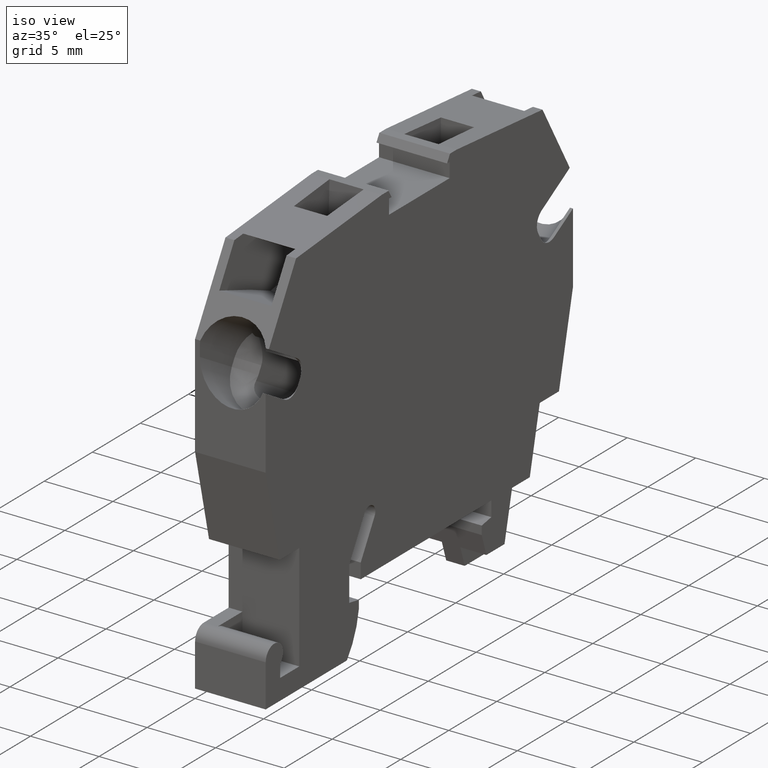
[diagram: clean part render]
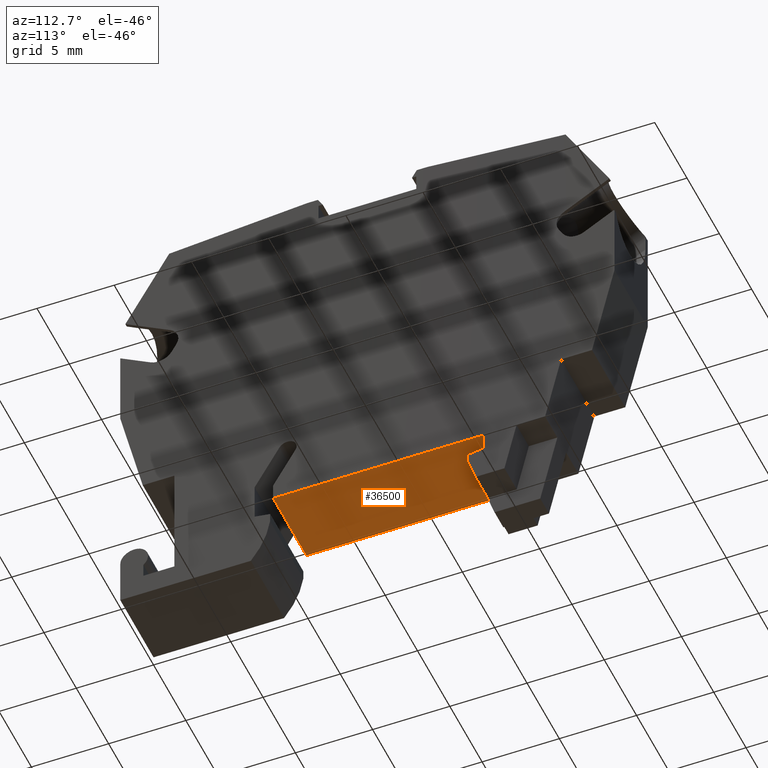
[diagram: tour spotlight — one face highlighted and labeled with its STEP entity id]
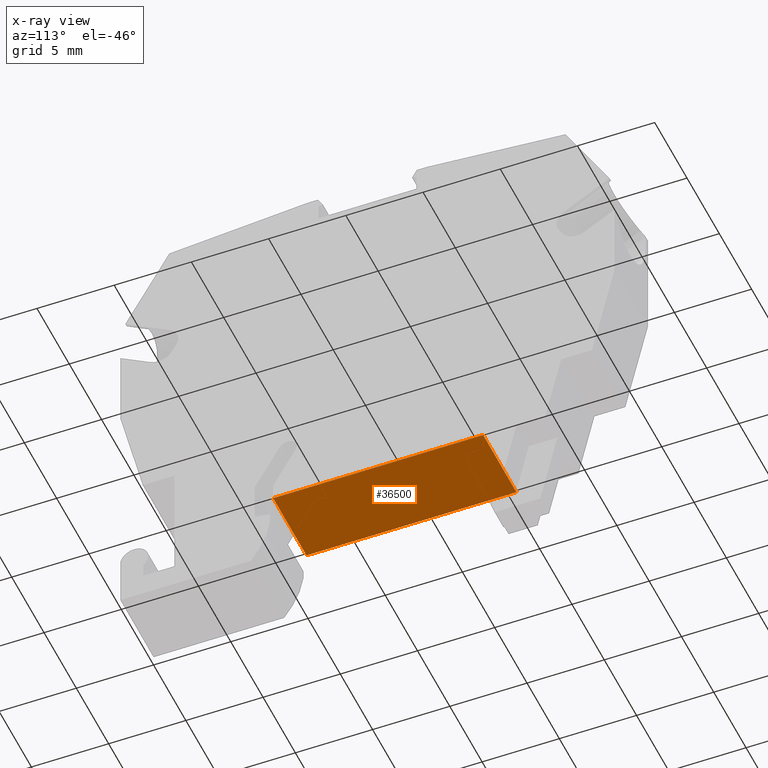
[diagram: x-ray of the same camera — body ghosted, this tour face saturated]
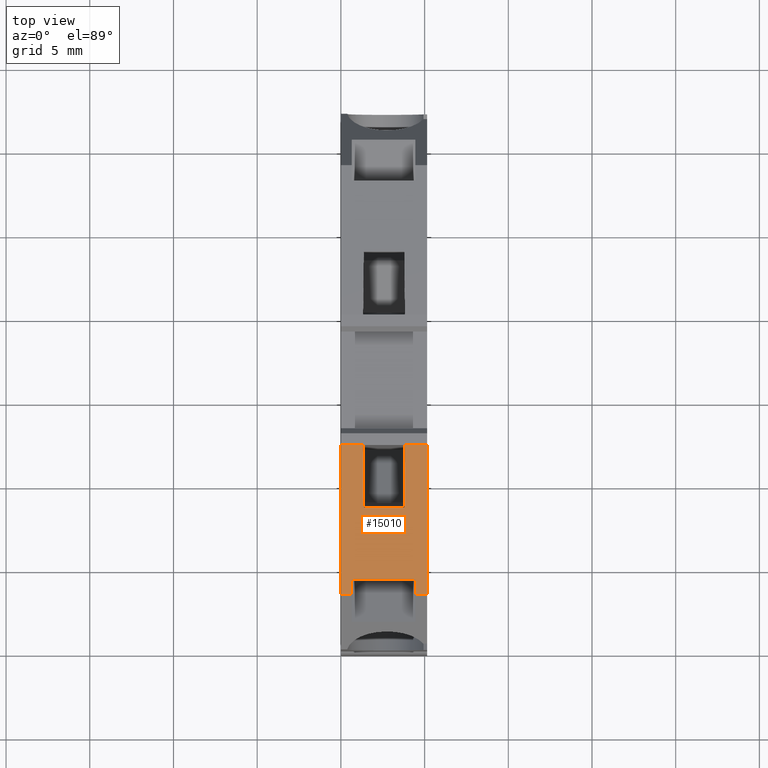
[diagram: tour spotlight — one face highlighted and labeled with its STEP entity id]
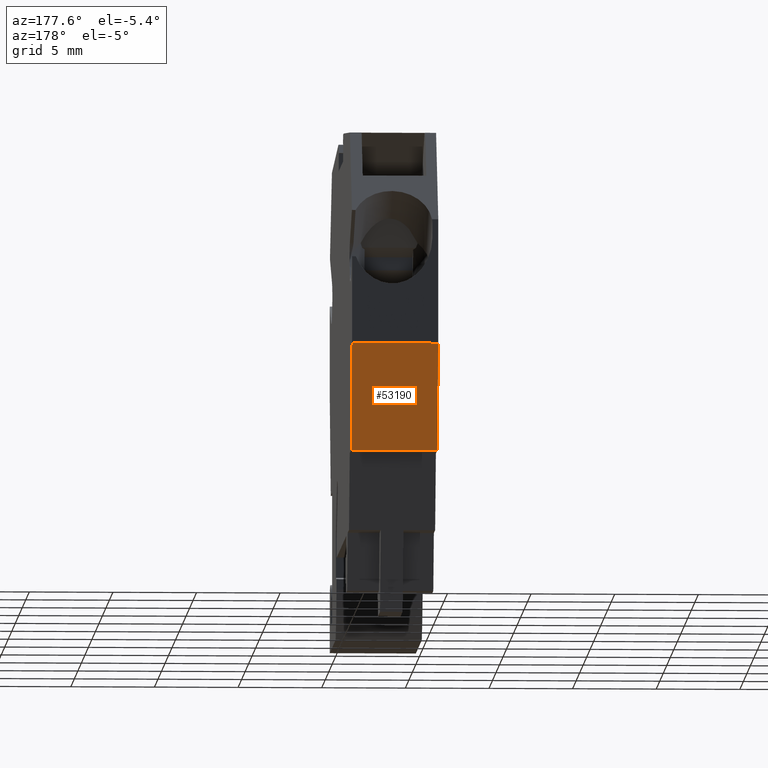
[diagram: tour spotlight — one face highlighted and labeled with its STEP entity id]
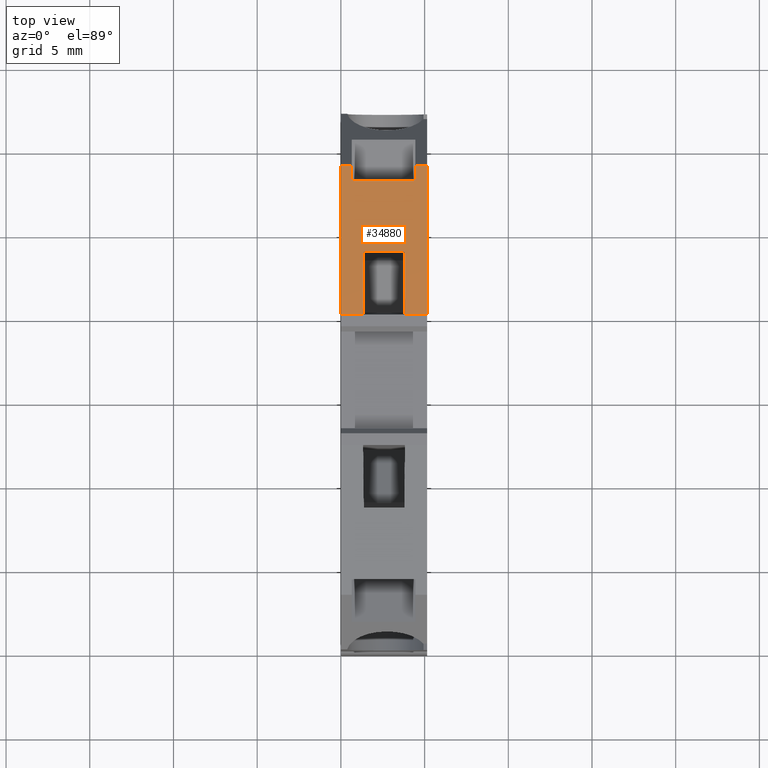
[diagram: tour spotlight — one face highlighted and labeled with its STEP entity id]
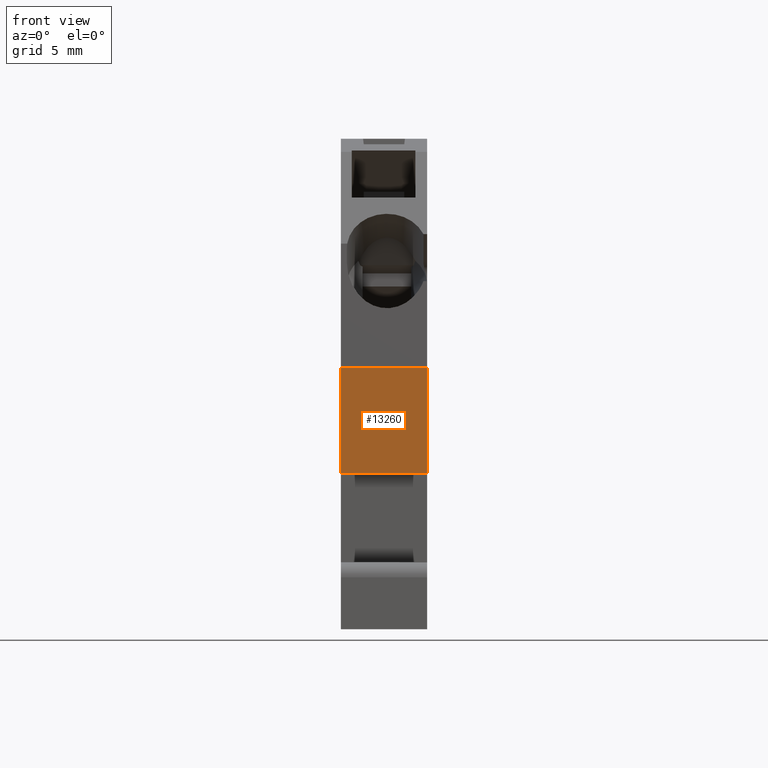
[diagram: tour spotlight — one face highlighted and labeled with its STEP entity id]
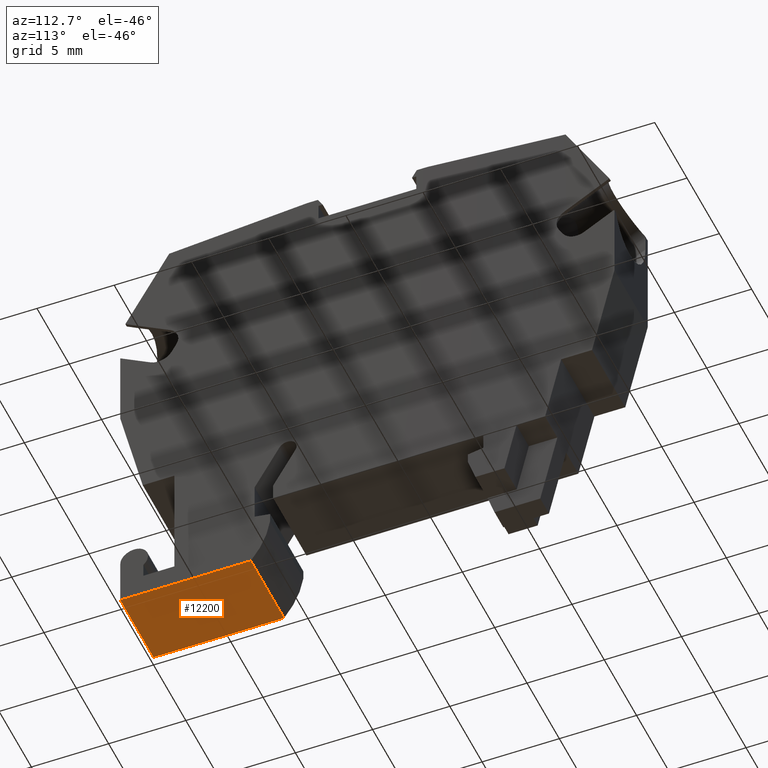
[diagram: tour spotlight — one face highlighted and labeled with its STEP entity id]
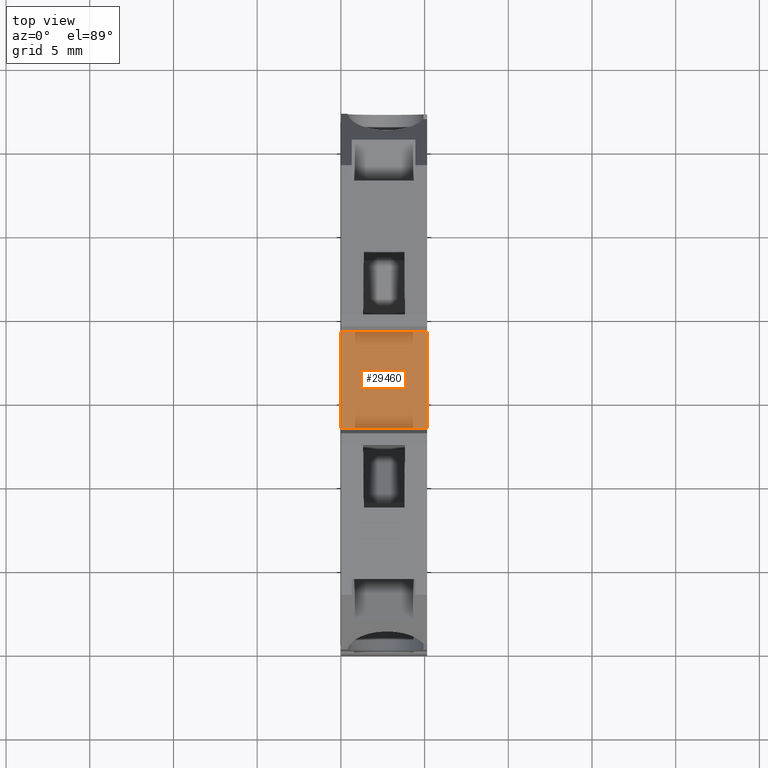
[diagram: tour spotlight — one face highlighted and labeled with its STEP entity id]
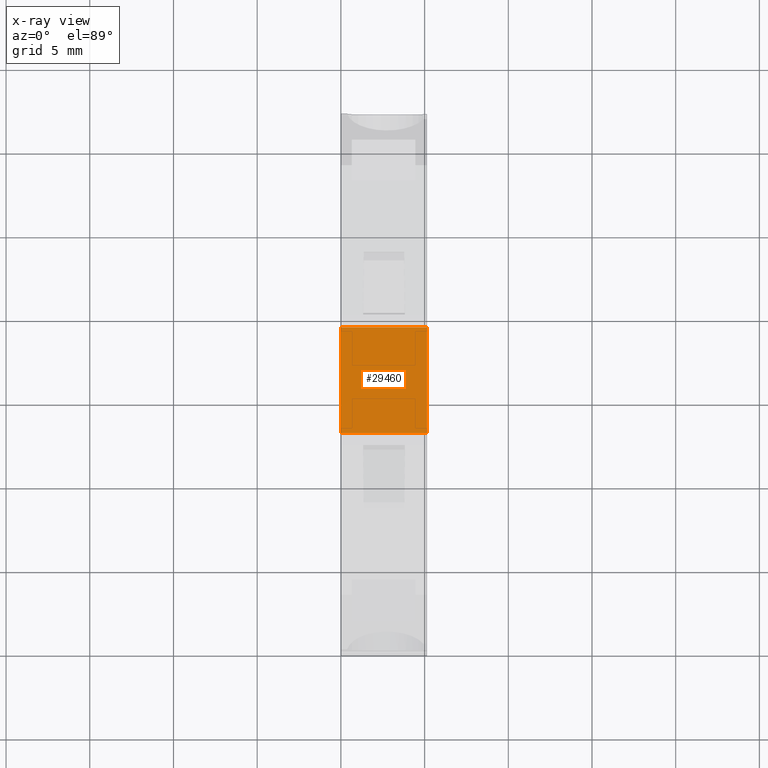
[diagram: x-ray of the same camera — body ghosted, this tour face saturated]
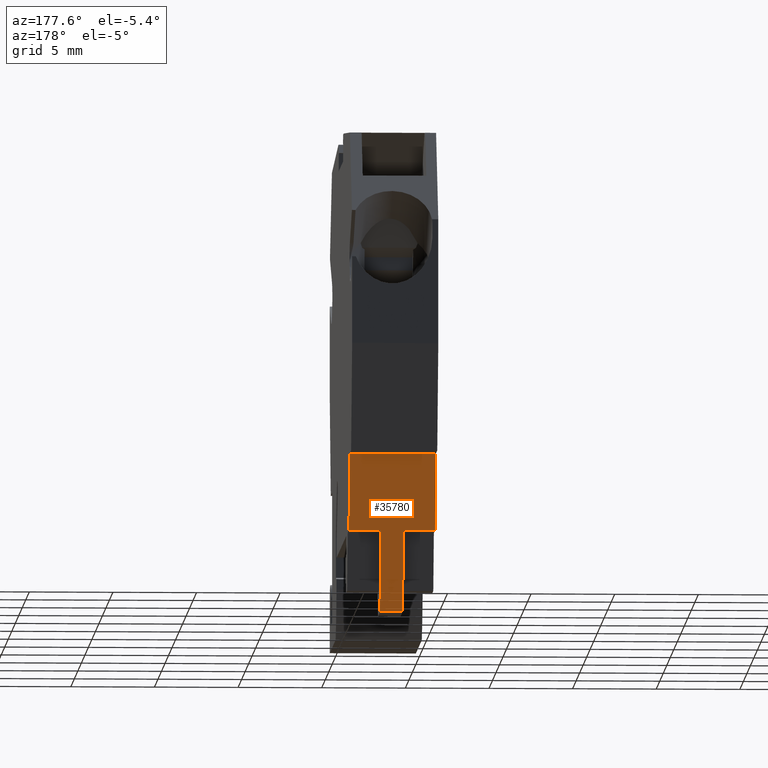
[diagram: tour spotlight — one face highlighted and labeled with its STEP entity id]
A machine part: a face-by-face anatomy tour. The part has 129 B-rep faces; the first image is the clean iso view, then the 8 largest visible faces are spotlighted one at a time (largest first), each with its STEP entity span.

Face 1 — auxiliary view, entity #36500. An x-ray twin of the same camera follows (body ghosted, this face saturated) — the face is partly hidden behind the body. In plain terms, the highlighted planar face has unit normal (0, -0, -1).
Definition (entity closure, byte-faithful):
#3450=CARTESIAN_POINT('',(81.9446515722257,106.431713042915,
4.74999999999949));
#3460=VERTEX_POINT('',#3450);
#3490=CARTESIAN_POINT('',(88.4642246456651,117.723944849772,
4.74999999999949));
#3500=DIRECTION('',(-0.499999999999958,-0.866025403784463,
-1.02634164867532E-48));
#3510=VECTOR('',#3500,1.);
#3520=LINE('',#3490,#3510);
#3530=CARTESIAN_POINT('',(88.7446515722251,118.209658534384,
4.74999999999949));
#3540=VERTEX_POINT('',#3530);
#3550=EDGE_CURVE('',#3540,#3460,#3520,.T.);
#8580=CARTESIAN_POINT('',(88.744651572225,118.209658534384,9.9));
#8590=VERTEX_POINT('',#8580);
#8620=CARTESIAN_POINT('',(88.4642246456651,117.723944849772,9.9));
#8630=DIRECTION('',(0.499999999999958,0.866025403784463,
1.02634164867532E-48));
#8640=VECTOR('',#8630,1.);
#8650=LINE('',#8620,#8640);
#8660=CARTESIAN_POINT('',(81.9446515722256,106.431713042915,9.9));
#8670=VERTEX_POINT('',#8660);
#8680=EDGE_CURVE('',#8670,#8590,#8650,.T.);
#35080=CARTESIAN_POINT('',(81.9446515722257,106.431713042915,
-0.399999999999929));
#35090=DIRECTION('',(-4.82893121391161E-15,-8.36395420874503E-15,1.));
#35100=VECTOR('',#35090,1.);
#35110=LINE('',#35080,#35100);
#35120=EDGE_CURVE('',#3460,#8670,#35110,.T.);
#36340=CARTESIAN_POINT('',(88.4946515722251,117.776645832492,
-0.399999999999802));
#36350=DIRECTION('',(0.866025403784463,-0.499999999999958,
3.03711448510089E-27));
#36360=DIRECTION('',(0.499999999999958,0.866025403784463,
9.65786242781877E-15));
#36370=AXIS2_PLACEMENT_3D('',#36340,#36350,#36360);
#36380=PLANE('',#36370);
#36390=ORIENTED_EDGE('',*,*,#3550,.F.);
#36400=ORIENTED_EDGE('',*,*,#35120,.F.);
#36410=ORIENTED_EDGE('',*,*,#8680,.F.);
#36420=CARTESIAN_POINT('',(88.7446515722251,118.209658534384,
-0.100000000000001));
#36430=DIRECTION('',(4.82893121391161E-15,8.36395420874503E-15,-1.));
#36440=VECTOR('',#36430,1.);
#36450=LINE('',#36420,#36440);
#36460=EDGE_CURVE('',#8590,#3540,#36450,.T.);
#36470=ORIENTED_EDGE('',*,*,#36460,.F.);
#36480=EDGE_LOOP('',(#36470,#36410,#36400,#36390));
#36490=FACE_OUTER_BOUND('',#36480,.T.);
#36500=ADVANCED_FACE('',(#36490),#36380,.T.);

Face 2 — top view, entity #15010. In plain terms, the highlighted planar face has unit normal (0, 0.0872, -0.9962).
Definition (entity closure, byte-faithful):
#1190=CARTESIAN_POINT('',(71.5706800120703,135.900297329958,
4.75000000000002));
#1200=VERTEX_POINT('',#1190);
#1230=CARTESIAN_POINT('',(58.8434609882825,117.723944849772,
4.75000000000006));
#1240=DIRECTION('',(0.573576436351189,0.819152044288892,
-1.99840144432528E-15));
#1250=VECTOR('',#1240,1.);
#1260=LINE('',#1230,#1250);
#1270=CARTESIAN_POINT('',(66.4270291795048,128.554402646055,
4.75000000000004));
#1280=VERTEX_POINT('',#1270);
#1290=EDGE_CURVE('',#1280,#1200,#1260,.T.);
#10420=CARTESIAN_POINT('',(66.4270291795048,128.554402646055,9.9));
#10430=VERTEX_POINT('',#10420);
#10460=CARTESIAN_POINT('',(58.8434609882825,117.723944849772,9.9));
#10470=DIRECTION('',(-0.573576436351189,-0.819152044288892,
-1.17737077065208E-48));
#10480=VECTOR('',#10470,1.);
#10490=LINE('',#10460,#10480);
#10500=CARTESIAN_POINT('',(71.5706800120703,135.900297329958,9.9));
#10510=VERTEX_POINT('',#10500);
#10520=EDGE_CURVE('',#10510,#10430,#10490,.T.);
#14160=CARTESIAN_POINT('',(66.4270291795051,128.554402646055,
4.75000000000001));
#14170=DIRECTION('',(0.819152044288892,-0.573576436351189,
-2.32308909465824E-19));
#14180=DIRECTION('',(0.57357643635119,0.819152044288893,
5.73944838223147E-18));
#14190=AXIS2_PLACEMENT_3D('',#14160,#14170,#14180);
#14200=PLANE('',#14190);
#14210=CARTESIAN_POINT('',(68.5862765979648,131.63812754279,
-0.100000000000001));
#14220=DIRECTION('',(-1.73715056265204E-13,-2.48090406327929E-13,-1.));
#14230=VECTOR('',#14220,1.);
#14240=LINE('',#14210,#14230);
#14250=CARTESIAN_POINT('',(68.5862765979626,131.638127542787,
8.53471430341724));
#14260=VERTEX_POINT('',#14250);
#14270=CARTESIAN_POINT('',(68.5862765979626,131.638127542787,
6.11528569658539));
#14280=VERTEX_POINT('',#14270);
#14290=EDGE_CURVE('',#14260,#14280,#14240,.T.);
#14300=ORIENTED_EDGE('',*,*,#14290,.F.);
#14310=CARTESIAN_POINT('',(58.8434609882825,117.723944849772,
5.93351119952656));
#14320=DIRECTION('',(-0.573543596321142,-0.819105143865439,
-0.0107007668973028));
#14330=VECTOR('',#14320,1.);
#14340=LINE('',#14310,#14330);
#14350=CARTESIAN_POINT('',(66.4270291795051,128.554402646055,
6.07500000000239));
#14360=VERTEX_POINT('',#14350);
#14370=EDGE_CURVE('',#14280,#14360,#14340,.T.);
#14380=ORIENTED_EDGE('',*,*,#14370,.F.);
#14390=CARTESIAN_POINT('',(66.4270291795048,128.554402646055,
-0.100000000000001));
#14400=DIRECTION('',(1.33272291162253E-18,2.30834379357487E-18,-1.));
#14410=VECTOR('',#14400,1.);
#14420=LINE('',#14390,#14410);
#14430=EDGE_CURVE('',#14360,#1280,#14420,.T.);
#14440=ORIENTED_EDGE('',*,*,#14430,.F.);
#14450=ORIENTED_EDGE('',*,*,#1290,.F.);
#14460=CARTESIAN_POINT('',(71.5706800120703,135.900297329958,
-0.100000000000001));
#14470=DIRECTION('',(2.50910263134173E-18,3.17835169785844E-18,1.));
#14480=VECTOR('',#14470,1.);
#14490=LINE('',#14460,#14480);
#14500=CARTESIAN_POINT('',(71.5706800120703,135.900297329958,
5.45000000000001));
#14510=VERTEX_POINT('',#14500);
#14520=EDGE_CURVE('',#1200,#14510,#14490,.T.);
#14530=ORIENTED_EDGE('',*,*,#14520,.F.);
#14540=CARTESIAN_POINT('',(58.8434609882825,117.723944849772,
5.45000000000646));
#14550=DIRECTION('',(-0.573576436351189,-0.819152044288892,
3.02924352268974E-13));
#14560=VECTOR('',#14550,1.);
#14570=LINE('',#14540,#14560);
#14580=CARTESIAN_POINT('',(71.0425973908905,135.146117187125,
5.45000000000001));
#14590=VERTEX_POINT('',#14580);
#14600=EDGE_CURVE('',#14510,#14590,#14570,.T.);
#14610=ORIENTED_EDGE('',*,*,#14600,.F.);
#14620=CARTESIAN_POINT('',(71.0425973908874,135.14611718712,
-0.100000000000001));
#14630=DIRECTION('',(1.44073924557608E-13,2.05758483162162E-13,1.));
#14640=VECTOR('',#14630,1.);
#14650=LINE('',#14620,#14640);
#14660=CARTESIAN_POINT('',(71.0425973908904,135.146117187125,
9.25000000000001));
#14670=VERTEX_POINT('',#14660);
#14680=EDGE_CURVE('',#14590,#14670,#14650,.T.);
#14690=ORIENTED_EDGE('',*,*,#14680,.F.);
#14700=CARTESIAN_POINT('',(58.8434609882825,117.723944849772,
9.25000000000646));
#14710=DIRECTION('',(0.573576436351189,0.819152044288892,
-3.02924352268974E-13));
#14720=VECTOR('',#14710,1.);
#14730=LINE('',#14700,#14720);
#14740=CARTESIAN_POINT('',(71.5706800120703,135.900297329958,
9.25000000000001));
#14750=VERTEX_POINT('',#14740);
#14760=EDGE_CURVE('',#14670,#14750,#14730,.T.);
#14770=ORIENTED_EDGE('',*,*,#14760,.F.);
#14780=CARTESIAN_POINT('',(71.5706800120703,135.900297329958,
-0.100000000000001));
#14790=DIRECTION('',(-2.50910263134173E-18,-3.17835169785844E-18,-1.));
#14800=VECTOR('',#14790,1.);
#14810=LINE('',#14780,#14800);
#14820=EDGE_CURVE('',#10510,#14750,#14810,.T.);
#14830=ORIENTED_EDGE('',*,*,#14820,.T.);
#14840=ORIENTED_EDGE('',*,*,#10520,.F.);
#14850=CARTESIAN_POINT('',(66.4270291795048,128.554402646055,
-0.100000000000001));
#14860=DIRECTION('',(1.33272291162253E-18,2.30834379357487E-18,-1.));
#14870=VECTOR('',#14860,1.);
#14880=LINE('',#14850,#14870);
#14890=CARTESIAN_POINT('',(66.4270291795048,128.554402646055,
8.57500000000224));
#14900=VERTEX_POINT('',#14890);
#14910=EDGE_CURVE('',#10430,#14900,#14880,.T.);
#14920=ORIENTED_EDGE('',*,*,#14910,.F.);
#14930=CARTESIAN_POINT('',(58.8434609882825,117.723944849772,
8.71648880048636));
#14940=DIRECTION('',(0.573543596321138,0.819105143865433,
-0.0107007668979085));
#14950=VECTOR('',#14940,1.);
#14960=LINE('',#14930,#14950);
#14970=EDGE_CURVE('',#14900,#14260,#14960,.T.);
#14980=ORIENTED_EDGE('',*,*,#14970,.F.);
#14990=EDGE_LOOP('',(#14980,#14920,#14840,#14830,#14770,#14690,#14610,
#14530,#14450,#14440,#14380,#14300));
#15000=FACE_OUTER_BOUND('',#14990,.T.);
#15010=ADVANCED_FACE('',(#15000),#14200,.F.);

Face 3 — auxiliary view, entity #53190. In plain terms, the highlighted planar face has unit normal (0, -0.9744, 0.225).
Definition (entity closure, byte-faithful):
#2650=CARTESIAN_POINT('',(68.3415772113182,104.470497110757,
4.74999999999973));
#2660=VERTEX_POINT('',#2650);
#2690=CARTESIAN_POINT('',(79.6226566744922,101.021524998876,
4.74999999999948));
#2700=DIRECTION('',(0.956304755962662,-0.29237170472396,
-2.17048601314218E-14));
#2710=VECTOR('',#2700,1.);
#2720=LINE('',#2690,#2710);
#2730=CARTESIAN_POINT('',(74.524772057222,102.580104736919,
4.74999999999959));
#2740=VERTEX_POINT('',#2730);
#2750=EDGE_CURVE('',#2660,#2740,#2720,.T.);
#9380=CARTESIAN_POINT('',(74.524772057222,102.580104736919,9.9));
#9390=VERTEX_POINT('',#9380);
#9420=CARTESIAN_POINT('',(79.4494515937163,101.074479106254,9.9));
#9430=DIRECTION('',(0.956304755962662,-0.29237170472396,
5.98579406710722E-19));
#9440=VECTOR('',#9430,1.);
#9450=LINE('',#9420,#9440);
#9460=CARTESIAN_POINT('',(68.3415772113182,104.470497110757,9.9));
#9470=VERTEX_POINT('',#9460);
#9480=EDGE_CURVE('',#9470,#9390,#9450,.T.);
#38740=CARTESIAN_POINT('',(74.524772057222,102.580104736919,
-0.100000000000001));
#38750=DIRECTION('',(-6.92491906862756E-19,-1.73703313031906E-18,1.));
#38760=VECTOR('',#38750,1.);
#38770=LINE('',#38740,#38760);
#38780=EDGE_CURVE('',#2740,#9390,#38770,.T.);
#52860=CARTESIAN_POINT('',(68.3415772113181,104.470497110757,
-0.0999999999999974));
#52870=DIRECTION('',(-9.08717145964307E-18,8.29477969991289E-19,1.));
#52880=VECTOR('',#52870,1.);
#52890=LINE('',#52860,#52880);
#52900=EDGE_CURVE('',#2660,#9470,#52890,.T.);
#53080=CARTESIAN_POINT('',(68.3415772113362,104.470497110752,
-0.400000000000005));
#53090=DIRECTION('',(0.29237170472396,0.956304755962662,
1.86359808310583E-18));
#53100=DIRECTION('',(-0.956304755962662,0.29237170472396,
-4.30245518430858E-19));
#53110=AXIS2_PLACEMENT_3D('',#53080,#53090,#53100);
#53120=PLANE('',#53110);
#53130=ORIENTED_EDGE('',*,*,#2750,.T.);
#53140=ORIENTED_EDGE('',*,*,#52900,.F.);
#53150=ORIENTED_EDGE('',*,*,#9480,.F.);
#53160=ORIENTED_EDGE('',*,*,#38780,.T.);
#53170=EDGE_LOOP('',(#53160,#53150,#53140,#53130));
#53180=FACE_OUTER_BOUND('',#53170,.T.);
#53190=ADVANCED_FACE('',(#53180),#53120,.F.);

Face 4 — top view, entity #34880. In plain terms, the highlighted planar face has unit normal (-0, 0.0872, 0.9962).
Definition (entity closure, byte-faithful):
#1990=CARTESIAN_POINT('',(62.5270291795025,121.799404496541,
4.75000000000004));
#2000=VERTEX_POINT('',#1990);
#2030=CARTESIAN_POINT('',(60.6266111357071,117.723944849772,
4.75000000000003));
#2040=DIRECTION('',(0.422618261741619,0.906307787036221,
1.94289029309402E-15));
#2050=VECTOR('',#2040,1.);
#2060=LINE('',#2030,#2050);
#2070=CARTESIAN_POINT('',(58.7371231859943,113.671924865404,
4.75000000000002));
#2080=VERTEX_POINT('',#2070);
#2090=EDGE_CURVE('',#2080,#2000,#2060,.T.);
#9620=CARTESIAN_POINT('',(58.7371231859943,113.671924865404,9.9));
#9630=VERTEX_POINT('',#9620);
#9660=CARTESIAN_POINT('',(60.6266111357071,117.723944849772,9.9));
#9670=DIRECTION('',(0.422618261741619,0.906307787036221,
8.67501447032452E-49));
#9680=VECTOR('',#9670,1.);
#9690=LINE('',#9660,#9680);
#9700=CARTESIAN_POINT('',(62.5270291795025,121.799404496541,9.9));
#9710=VERTEX_POINT('',#9700);
#9720=EDGE_CURVE('',#9630,#9710,#9690,.T.);
#30130=CARTESIAN_POINT('',(58.7371231859943,113.671924865404,
5.45000000000001));
#30140=VERTEX_POINT('',#30130);
#30170=CARTESIAN_POINT('',(60.6266111357071,117.723944849772,
5.45000000000109));
#30180=DIRECTION('',(-0.422618261741619,-0.906307787036221,
-3.02924352268974E-13));
#30190=VECTOR('',#30180,1.);
#30200=LINE('',#30170,#30190);
#30210=CARTESIAN_POINT('',(59.1262210381253,114.506347902052,
5.45000000000001));
#30220=VERTEX_POINT('',#30210);
#30230=EDGE_CURVE('',#30220,#30140,#30200,.T.);
#33200=CARTESIAN_POINT('',(59.1262210381252,114.506347902052,
9.25000000000001));
#33210=VERTEX_POINT('',#33200);
#33240=CARTESIAN_POINT('',(60.6266111357071,117.723944849772,
9.2500000000011));
#33250=DIRECTION('',(0.422618261741619,0.906307787036221,
3.02924352268974E-13));
#33260=VECTOR('',#33250,1.);
#33270=LINE('',#33240,#33260);
#33280=CARTESIAN_POINT('',(58.7371231859943,113.671924865404,
9.25000000000001));
#33290=VERTEX_POINT('',#33280);
#33300=EDGE_CURVE('',#33290,#33210,#33270,.T.);
#34100=CARTESIAN_POINT('',(59.1262210381265,114.506347902055,
-0.100000000000001));
#34110=DIRECTION('',(1.0615546194014E-13,2.27651122779916E-13,-1.));
#34120=VECTOR('',#34110,1.);
#34130=LINE('',#34100,#34120);
#34140=EDGE_CURVE('',#33210,#30220,#34130,.T.);
#34260=CARTESIAN_POINT('',(60.2387964198115,116.89227350766,9.9));
#34270=DIRECTION('',(-0.906307787036221,0.422618261741619,
1.84509360974314E-49));
#34280=DIRECTION('',(0.422618261741619,0.906307787036222,
1.0464045844367E-48));
#34290=AXIS2_PLACEMENT_3D('',#34260,#34270,#34280);
#34300=PLANE('',#34290);
#34310=CARTESIAN_POINT('',(60.9360687898735,118.387578930734,
-0.100000000000001));
#34320=DIRECTION('',(-1.27995276726288E-13,-2.74486756731335E-13,1.));
#34330=VECTOR('',#34320,1.);
#34340=LINE('',#34310,#34330);
#34350=CARTESIAN_POINT('',(60.936068789875,118.387578930738,
6.11528569658539));
#34360=VERTEX_POINT('',#34350);
#34370=CARTESIAN_POINT('',(60.936068789875,118.387578930738,
8.53471430341724));
#34380=VERTEX_POINT('',#34370);
#34390=EDGE_CURVE('',#34360,#34380,#34340,.T.);
#34400=ORIENTED_EDGE('',*,*,#34390,.F.);
#34410=CARTESIAN_POINT('',(60.6266111357071,117.723944849772,
8.52687833387137));
#34420=DIRECTION('',(0.422594064798481,0.906255896524207,
0.0107007668979084));
#34430=VECTOR('',#34420,1.);
#34440=LINE('',#34410,#34430);
#34450=CARTESIAN_POINT('',(62.5270291794927,121.799404496524,
8.57500000000231));
#34460=VERTEX_POINT('',#34450);
#34470=EDGE_CURVE('',#34380,#34460,#34440,.T.);
#34480=ORIENTED_EDGE('',*,*,#34470,.F.);
#34490=CARTESIAN_POINT('',(62.5270291795025,121.799404496541,
-0.100000000000001));
#34500=DIRECTION('',(4.2648772496094E-27,9.14605877688691E-27,1.));
#34510=VECTOR('',#34500,1.);
#34520=LINE('',#34490,#34510);
#34530=EDGE_CURVE('',#34460,#9710,#34520,.T.);
#34540=ORIENTED_EDGE('',*,*,#34530,.F.);
#34550=ORIENTED_EDGE('',*,*,#9720,.T.);
#34560=CARTESIAN_POINT('',(58.7371231859943,113.671924865404,
-0.100000000000001));
#34570=DIRECTION('',(1.63978040354874E-18,3.51652042351692E-18,-1.));
#34580=VECTOR('',#34570,1.);
#34590=LINE('',#34560,#34580);
#34600=EDGE_CURVE('',#9630,#33290,#34590,.T.);
#34610=ORIENTED_EDGE('',*,*,#34600,.F.);
#34620=ORIENTED_EDGE('',*,*,#33300,.F.);
#34630=ORIENTED_EDGE('',*,*,#34140,.F.);
#34640=ORIENTED_EDGE('',*,*,#30230,.F.);
#34650=CARTESIAN_POINT('',(58.7371231859943,113.671924865404,
-0.100000000000001));
#34660=DIRECTION('',(-1.63978040354874E-18,-3.51652042351692E-18,1.));
#34670=VECTOR('',#34660,1.);
#34680=LINE('',#34650,#34670);
#34690=EDGE_CURVE('',#2080,#30140,#34680,.T.);
#34700=ORIENTED_EDGE('',*,*,#34690,.T.);
#34710=ORIENTED_EDGE('',*,*,#2090,.F.);
#34720=CARTESIAN_POINT('',(62.5270291795025,121.799404496541,
-0.100000000000001));
#34730=DIRECTION('',(4.2648772496094E-27,9.14605877688691E-27,1.));
#34740=VECTOR('',#34730,1.);
#34750=LINE('',#34720,#34740);
#34760=CARTESIAN_POINT('',(62.5270291795025,121.799404496541,
6.0750000000026));
#34770=VERTEX_POINT('',#34760);
#34780=EDGE_CURVE('',#2000,#34770,#34750,.T.);
#34790=ORIENTED_EDGE('',*,*,#34780,.F.);
#34800=CARTESIAN_POINT('',(60.6266111357071,117.723944849772,
6.12312166613082));
#34810=DIRECTION('',(-0.422594064798484,-0.906255896524213,
0.0107007668973027));
#34820=VECTOR('',#34810,1.);
#34830=LINE('',#34800,#34820);
#34840=EDGE_CURVE('',#34770,#34360,#34830,.T.);
#34850=ORIENTED_EDGE('',*,*,#34840,.F.);
#34860=EDGE_LOOP('',(#34850,#34790,#34710,#34700,#34640,#34630,#34620,
#34610,#34550,#34540,#34480,#34400));
#34870=FACE_OUTER_BOUND('',#34860,.T.);
#34880=ADVANCED_FACE('',(#34870),#34300,.T.);

Face 5 — front view, entity #13260. In plain terms, the highlighted planar face has unit normal (0, -0.9744, -0.225).
Definition (entity closure, byte-faithful):
#530=CARTESIAN_POINT('',(89.0703024531515,127.773702405656,
4.74999999999959));
#540=VERTEX_POINT('',#530);
#570=CARTESIAN_POINT('',(79.6226566744922,136.583774622739,
4.74999999999987));
#580=DIRECTION('',(0.731353701619229,-0.681998360062436,
-2.17048601314218E-14));
#590=VECTOR('',#580,1.);
#600=LINE('',#570,#590);
#610=CARTESIAN_POINT('',(84.3415772113346,132.18331003185,
4.74999999999973));
#620=VERTEX_POINT('',#610);
#630=EDGE_CURVE('',#620,#540,#600,.T.);
#10660=CARTESIAN_POINT('',(84.3415772113346,132.18331003185,9.9));
#10670=VERTEX_POINT('',#10660);
#10700=CARTESIAN_POINT('',(92.8365522661335,124.261617636888,9.9));
#10710=DIRECTION('',(0.731353701619229,-0.681998360062436,
-1.12240266701089E-18));
#10720=VECTOR('',#10710,1.);
#10730=LINE('',#10700,#10720);
#10740=CARTESIAN_POINT('',(89.0703024531515,127.773702405656,9.9));
#10750=VERTEX_POINT('',#10740);
#10760=EDGE_CURVE('',#10670,#10750,#10730,.T.);
#13050=CARTESIAN_POINT('',(84.3415772113485,132.183310031837,
-0.400000000000005));
#13060=DIRECTION('',(0.681998360062436,0.731353701619229,
5.59079424931802E-18));
#13070=DIRECTION('',(-0.731353701619229,0.681998360062437,
1.29073655529075E-18));
#13080=AXIS2_PLACEMENT_3D('',#13050,#13060,#13070);
#13090=PLANE('',#13080);
#13100=CARTESIAN_POINT('',(89.0703024531515,127.773702405656,
-0.100000000000001));
#13110=DIRECTION('',(-2.66716787129731E-18,-5.15727222919803E-18,1.));
#13120=VECTOR('',#13110,1.);
#13130=LINE('',#13100,#13120);
#13140=EDGE_CURVE('',#540,#10750,#13130,.T.);
#13150=ORIENTED_EDGE('',*,*,#13140,.F.);
#13160=ORIENTED_EDGE('',*,*,#10760,.T.);
#13170=CARTESIAN_POINT('',(84.3415772113346,132.18331003185,
-0.0999999999999973));
#13180=DIRECTION('',(-9.08717145964307E-18,8.29477969991285E-19,1.));
#13190=VECTOR('',#13180,1.);
#13200=LINE('',#13170,#13190);
#13210=EDGE_CURVE('',#620,#10670,#13200,.T.);
#13220=ORIENTED_EDGE('',*,*,#13210,.T.);
#13230=ORIENTED_EDGE('',*,*,#630,.F.);
#13240=EDGE_LOOP('',(#13230,#13220,#13160,#13150));
#13250=FACE_OUTER_BOUND('',#13240,.T.);
#13260=ADVANCED_FACE('',(#13250),#13090,.T.);

Face 6 — auxiliary view, entity #12200. In plain terms, the highlighted planar face has unit normal (0, -0, -1).
Definition (entity closure, byte-faithful):
#100=CARTESIAN_POINT('',(97.8515735103915,124.383310031853,
4.74999999999938));
#110=VERTEX_POINT('',#100);
#6070=CARTESIAN_POINT('',(93.6243744555108,117.061586495092,
4.74999999999938));
#6080=VERTEX_POINT('',#6070);
#6110=CARTESIAN_POINT('',(94.0067872298852,117.723944849772,
4.74999999999938));
#6120=DIRECTION('',(-0.499999999999961,-0.866025403784461,
-1.02634164867532E-48));
#6130=VECTOR('',#6120,1.);
#6140=LINE('',#6110,#6130);
#6150=EDGE_CURVE('',#110,#6080,#6140,.T.);
#6320=CARTESIAN_POINT('',(94.0067872298852,117.723944849772,9.9));
#6330=DIRECTION('',(0.499999999999961,0.866025403784461,
1.02634164867532E-48));
#6340=VECTOR('',#6330,1.);
#6350=LINE('',#6320,#6340);
#6360=CARTESIAN_POINT('',(93.6243744555108,117.061586495092,9.9));
#6370=VERTEX_POINT('',#6360);
#6380=CARTESIAN_POINT('',(97.8515735103915,124.383310031853,9.9));
#6390=VERTEX_POINT('',#6380);
#6400=EDGE_CURVE('',#6370,#6390,#6350,.T.);
#11400=CARTESIAN_POINT('',(93.6243744555108,117.061586495092,
-0.399999999999783));
#11410=DIRECTION('',(4.82893121391161E-15,8.36395420874503E-15,-1.));
#11420=VECTOR('',#11410,1.);
#11430=LINE('',#11400,#11420);
#11440=EDGE_CURVE('',#6370,#6080,#11430,.T.);
#12040=CARTESIAN_POINT('',(97.3515735103916,123.517284628068,
-0.399999999999712));
#12050=DIRECTION('',(0.866025403784461,-0.499999999999961,
2.99688257893462E-27));
#12060=DIRECTION('',(0.499999999999961,0.866025403784461,
9.65786242781877E-15));
#12070=AXIS2_PLACEMENT_3D('',#12040,#12050,#12060);
#12080=PLANE('',#12070);
#12090=ORIENTED_EDGE('',*,*,#6150,.F.);
#12100=ORIENTED_EDGE('',*,*,#11440,.T.);
#12110=ORIENTED_EDGE('',*,*,#6400,.F.);
#12120=CARTESIAN_POINT('',(97.8515735103915,124.383310031853,
-0.100000000000001));
#12130=DIRECTION('',(4.82893121391161E-15,8.36395420874503E-15,-1.));
#12140=VECTOR('',#12130,1.);
#12150=LINE('',#12120,#12140);
#12160=EDGE_CURVE('',#6390,#110,#12150,.T.);
#12170=ORIENTED_EDGE('',*,*,#12160,.F.);
#12180=EDGE_LOOP('',(#12170,#12110,#12100,#12090));
#12190=FACE_OUTER_BOUND('',#12180,.T.);
#12200=ADVANCED_FACE('',(#12190),#12080,.T.);

Face 7 — top view, entity #29460. An x-ray twin of the same camera follows (body ghosted, this face saturated) — the face is partly hidden behind the body. In plain terms, the highlighted planar face has unit normal (-0, -0, 1).
Definition (entity closure, byte-faithful):
#1590=CARTESIAN_POINT('',(67.4439198255639,127.115708910766,4.75));
#1600=VERTEX_POINT('',#1590);
#1630=CARTESIAN_POINT('',(62.0215823167769,117.723944849772,4.75));
#1640=DIRECTION('',(0.500000000000464,0.866025403784171,
-5.55111512312578E-17));
#1650=VECTOR('',#1640,1.);
#1660=LINE('',#1630,#1650);
#1670=CARTESIAN_POINT('',(64.2814198255588,121.638098231827,4.75));
#1680=VERTEX_POINT('',#1670);
#1690=EDGE_CURVE('',#1680,#1600,#1660,.T.);
#10020=CARTESIAN_POINT('',(64.2814198255589,121.638098231827,9.9));
#10030=VERTEX_POINT('',#10020);
#10060=CARTESIAN_POINT('',(62.021582316777,117.723944849772,9.9));
#10070=DIRECTION('',(-0.500000000000464,-0.866025403784171,
-1.02634164867636E-48));
#10080=VECTOR('',#10070,1.);
#10090=LINE('',#10060,#10080);
#10100=CARTESIAN_POINT('',(67.443919825564,127.115708910765,9.9));
#10110=VERTEX_POINT('',#10100);
#10120=EDGE_CURVE('',#10110,#10030,#10090,.T.);
#28820=CARTESIAN_POINT('',(64.2814198255587,121.638098231827,
-0.100000000000001));
#28830=DIRECTION('',(-2.30407018691187E-14,4.66569131090343E-15,-1.));
#28840=VECTOR('',#28830,1.);
#28850=LINE('',#28820,#28840);
#28860=EDGE_CURVE('',#10030,#1680,#28850,.T.);
#29300=CARTESIAN_POINT('',(64.6562415027954,122.287308420578,10.4150024)
);
#29310=DIRECTION('',(-0.866025403784171,0.500000000000464,
2.22866787951281E-14));
#29320=DIRECTION('',(-0.500000000000465,-0.866025403784171,
-7.48739420659064E-15));
#29330=AXIS2_PLACEMENT_3D('',#29300,#29310,#29320);
#29340=PLANE('',#29330);
#29350=ORIENTED_EDGE('',*,*,#1690,.F.);
#29360=CARTESIAN_POINT('',(67.4439198255638,127.115708910766,
-0.100000000000001));
#29370=DIRECTION('',(1.93008300025609E-14,-1.11433393975709E-14,1.));
#29380=VECTOR('',#29370,1.);
#29390=LINE('',#29360,#29380);
#29400=EDGE_CURVE('',#1600,#10110,#29390,.T.);
#29410=ORIENTED_EDGE('',*,*,#29400,.F.);
#29420=ORIENTED_EDGE('',*,*,#10120,.F.);
#29430=ORIENTED_EDGE('',*,*,#28860,.F.);
#29440=EDGE_LOOP('',(#29430,#29420,#29410,#29350));
#29450=FACE_OUTER_BOUND('',#29440,.T.);
#29460=ADVANCED_FACE('',(#29450),#29340,.T.);

Face 8 — auxiliary view, entity #35780. In plain terms, the highlighted planar face has unit normal (0, 0.9744, -0.225).
Definition (entity closure, byte-faithful):
#2810=CARTESIAN_POINT('',(75.5244504360704,104.311598480309,
4.74999999999959));
#2820=VERTEX_POINT('',#2810);
#2850=CARTESIAN_POINT('',(79.6226566744922,103.058651094278,
4.7499999999995));
#2860=DIRECTION('',(-0.956304755963056,0.292371704722669,
2.17048601314218E-14));
#2870=VECTOR('',#2860,1.);
#2880=LINE('',#2850,#2870);
#2890=CARTESIAN_POINT('',(79.9410181831446,102.961318213288,
4.74999999999949));
#2900=VERTEX_POINT('',#2890);
#2910=EDGE_CURVE('',#2900,#2820,#2880,.T.);
#9220=CARTESIAN_POINT('',(79.9410181831449,102.961318213287,
9.90000000000768));
#9230=VERTEX_POINT('',#9220);
#9260=CARTESIAN_POINT('',(79.6226566744922,103.058651094278,9.9));
#9270=DIRECTION('',(0.956304755963056,-0.292371704722669,
1.9629907997425E-48));
#9280=VECTOR('',#9270,1.);
#9290=LINE('',#9260,#9280);
#9300=CARTESIAN_POINT('',(75.5244504360704,104.311598480309,9.9));
#9310=VERTEX_POINT('',#9300);
#9320=EDGE_CURVE('',#9310,#9230,#9290,.T.);
#35250=CARTESIAN_POINT('',(79.4625326581245,103.10760591892,
-0.399999999999969));
#35260=DIRECTION('',(-0.292371704722669,-0.956304755963056,
-9.41033203947994E-15));
#35270=DIRECTION('',(0.956304755963057,-0.292371704722669,
2.172546335849E-15));
#35280=AXIS2_PLACEMENT_3D('',#35250,#35260,#35270);
#35290=PLANE('',#35280);
#35300=ORIENTED_EDGE('',*,*,#2910,.F.);
#35310=CARTESIAN_POINT('',(75.5244504360704,104.311598480309,
-0.100000000000001));
#35320=DIRECTION('',(-4.82866739664008E-15,-8.36403486577924E-15,1.));
#35330=VECTOR('',#35320,1.);
#35340=LINE('',#35310,#35330);
#35350=EDGE_CURVE('',#2820,#9310,#35340,.T.);
#35360=ORIENTED_EDGE('',*,*,#35350,.F.);
#35370=ORIENTED_EDGE('',*,*,#9320,.F.);
#35380=CARTESIAN_POINT('',(79.9410181831447,102.961318213288,
-0.100000000000001));
#35390=DIRECTION('',(-1.43077320371174E-14,-5.46599397365615E-15,1.));
#35400=VECTOR('',#35390,1.);
#35410=LINE('',#35380,#35400);
#35420=CARTESIAN_POINT('',(79.9410181831448,102.961318213288,
8.00000000000768));
#35430=VERTEX_POINT('',#35420);
#35440=EDGE_CURVE('',#35430,#9230,#35410,.T.);
#35450=ORIENTED_EDGE('',*,*,#35440,.T.);
#35460=CARTESIAN_POINT('',(79.6226566744921,103.058651094278,
8.0000000000077));
#35470=DIRECTION('',(-0.956304755963056,0.292371704722669,
5.91193760612896E-14));
#35480=VECTOR('',#35470,1.);
#35490=LINE('',#35460,#35480);
#35500=CARTESIAN_POINT('',(84.6520237800126,101.521019261802,
8.00000000000738));
#35510=VERTEX_POINT('',#35500);
#35520=EDGE_CURVE('',#35510,#35430,#35490,.T.);
#35530=ORIENTED_EDGE('',*,*,#35520,.T.);
#35540=CARTESIAN_POINT('',(84.6520237800126,101.521019261802,
-0.100000000000001));
#35550=DIRECTION('',(4.82893121391161E-15,8.36395420874503E-15,-1.));
#35560=VECTOR('',#35550,1.);
#35570=LINE('',#35540,#35560);
#35580=CARTESIAN_POINT('',(84.6520237800126,101.521019261802,
6.64999999999938));
#35590=VERTEX_POINT('',#35580);
#35600=EDGE_CURVE('',#35510,#35590,#35570,.T.);
#35610=ORIENTED_EDGE('',*,*,#35600,.F.);
#35620=CARTESIAN_POINT('',(79.6226566744921,103.058651094278,
6.6499999999995));
#35630=DIRECTION('',(0.956304755963056,-0.292371704722669,
-2.17048601314218E-14));
#35640=VECTOR('',#35630,1.);
#35650=LINE('',#35620,#35640);
#35660=CARTESIAN_POINT('',(79.9410181831446,102.961318213288,
6.64999999999949));
#35670=VERTEX_POINT('',#35660);
#35680=EDGE_CURVE('',#35670,#35590,#35650,.T.);
#35690=ORIENTED_EDGE('',*,*,#35680,.T.);
#35700=CARTESIAN_POINT('',(79.9410181831445,102.961318213288,
-0.100000000000001));
#35710=DIRECTION('',(1.70445413984702E-14,-1.50513458963942E-14,1.));
#35720=VECTOR('',#35710,1.);
#35730=LINE('',#35700,#35720);
#35740=EDGE_CURVE('',#2900,#35670,#35730,.T.);
#35750=ORIENTED_EDGE('',*,*,#35740,.T.);
#35760=EDGE_LOOP('',(#35750,#35690,#35610,#35530,#35450,#35370,#35360,
#35300));
#35770=FACE_OUTER_BOUND('',#35760,.T.);
#35780=ADVANCED_FACE('',(#35770),#35290,.T.);